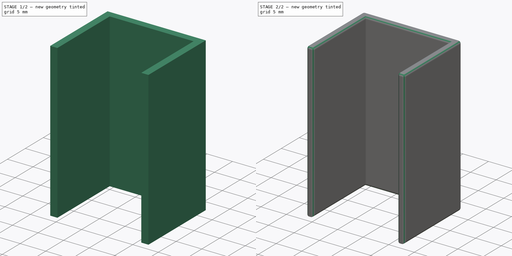
[diagram: build sequence overview — one tinted view per stage of 2, left to right]
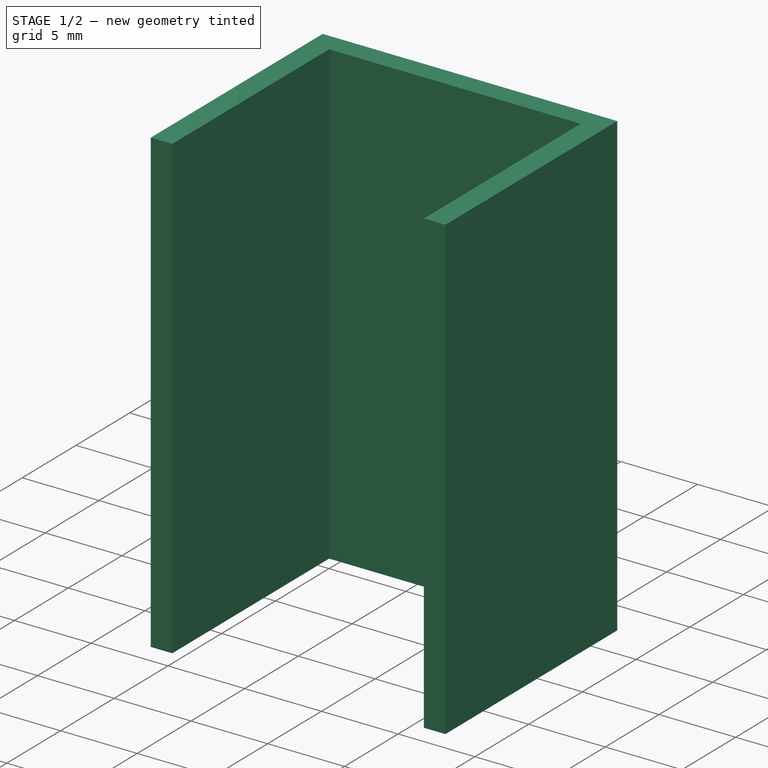
[diagram: stage 1 of 2 — iso view after this stage's code; geometry added in this stage tinted green]
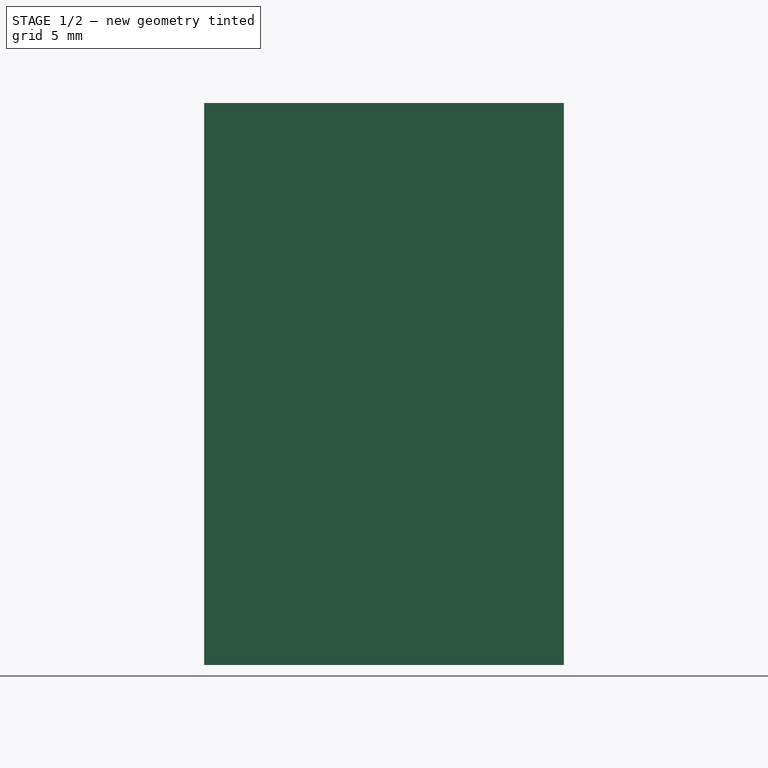
[diagram: stage 1 of 2 — front view after this stage's code; geometry added in this stage tinted green]
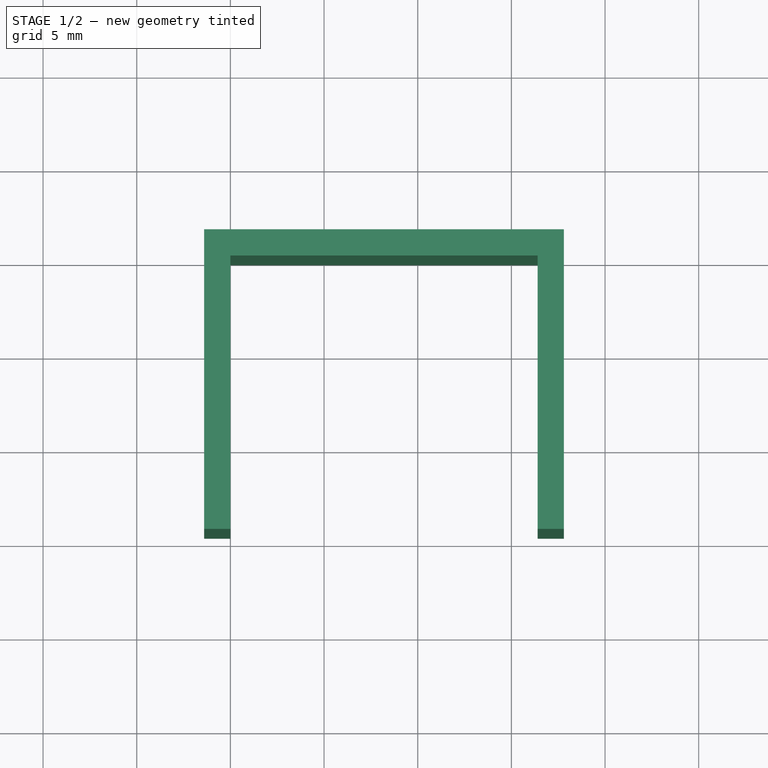
[diagram: stage 1 of 2 — top view after this stage's code; geometry added in this stage tinted green]
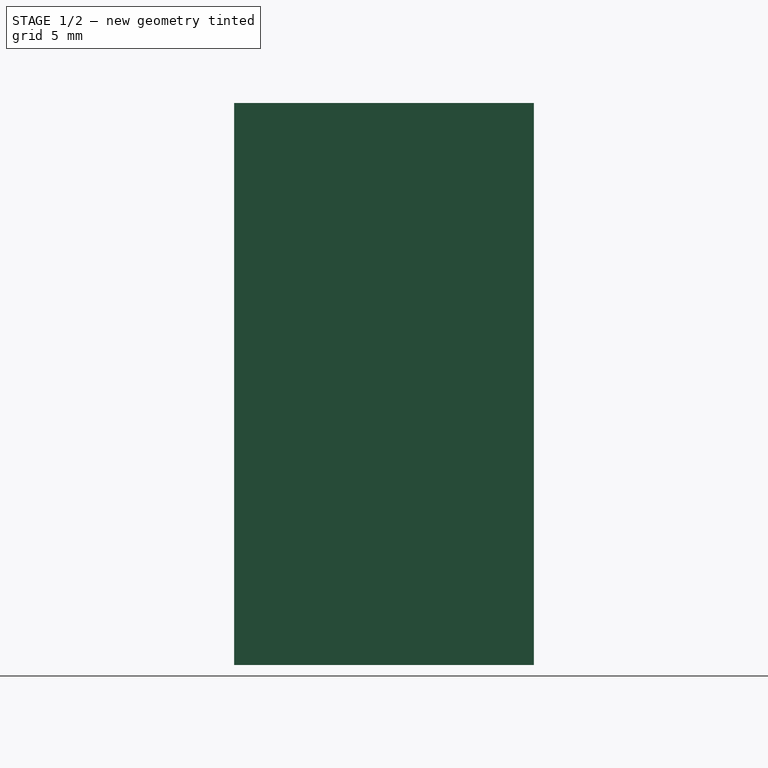
[diagram: stage 1 of 2 — right view after this stage's code; geometry added in this stage tinted green]
FCSTD DOCUMENT  (FreeCAD 0.20R29177 +426 (Git))
Label: 焊接工作台收边夹
License: All rights reserved
LicenseURL: http://en.wikipedia.org/wiki/All_rights_reserved
objects: Sketcher::SketchObject×1, PartDesign::Pad×1, PartDesign::Fillet×1, PartDesign::Body×1
note: 6 computed .brp shape members not serialized (recipe doc carries the construction recipe); baked Part::Feature solids carry a one-line shape summary decoded from their .brp

FEATURE [Sketcher::SketchObject] Sketch
  FullyConstrained = true
  MapMode = 5
  Support = -> [XY_Plane]
  sketch-geometry (8):
    g0: LineSegment StartX=-1.4 StartY=1.4 StartZ=0 EndX=-1.4 EndY=-14.6 EndZ=0
    g1: LineSegment StartX=-1.4 StartY=-14.6 StartZ=0 EndX=0 EndY=-14.6 EndZ=0
    g2: LineSegment StartX=0 StartY=-14.6 StartZ=0 EndX=0 EndY=0 EndZ=0
    g3: LineSegment StartX=0 StartY=0 StartZ=0 EndX=16.4 EndY=0 EndZ=0
    g4: LineSegment StartX=16.4 StartY=0 StartZ=0 EndX=16.4 EndY=-14.6 EndZ=0
    g5: LineSegment StartX=16.4 StartY=-14.6 StartZ=0 EndX=17.8 EndY=-14.6 EndZ=0
    g6: LineSegment StartX=17.8 StartY=-14.6 StartZ=0 EndX=17.8 EndY=1.4 EndZ=0
    g7: LineSegment StartX=17.8 StartY=1.4 StartZ=0 EndX=-1.4 EndY=1.4 EndZ=0
  constraints (23):
    c: Vertical(g0)
    c: Coincident(g0,g1)
    c: Horizontal(g1)
    c: Coincident(g1,g2)
    c: Vertical(g2)
    c: Coincident(g2,g3)
    c: Coincident(g3,g4)
    c: Coincident(g4,g5)
    c: Coincident(g5,g6)
    c: Vertical(g6)
    c: Coincident(g6,g7)
    c: Coincident(g7,g0)
    c: Horizontal(g7)
    c: Horizontal(g3)
    c: Vertical(g4)
    c: Horizontal(g5)
    c: Coincident(g2,g-1)
    c: Distance(g0,g1) = 1.4
    c: Distance(g5,g4) = 1.4
    c: Distance(g0,g3) = 1.4
    c: Distance(g1,g4) = 16.4
    c: Equal(g0,g6)
    c: DistanceY(g0,g0) = 16
FEATURE [PartDesign::Pad] Pad
  Direction = (0,0,1)
  Length = 30
  Length2 = 10
  Profile = -> Sketch
  ReferenceAxis = -> Sketch [N_Axis]
  Type = 0
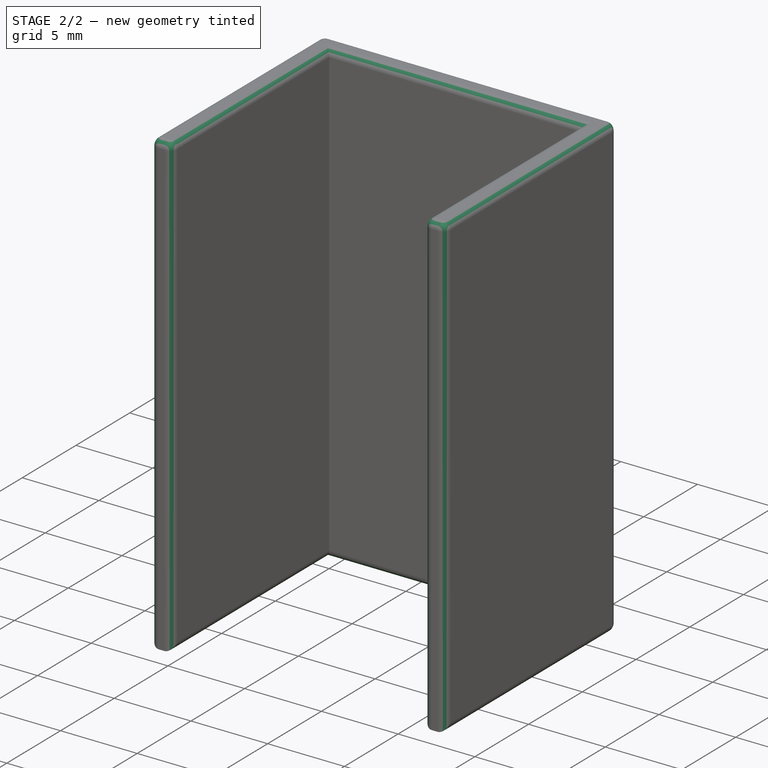
[diagram: stage 2 of 2 — iso view after this stage's code; geometry added in this stage tinted green]
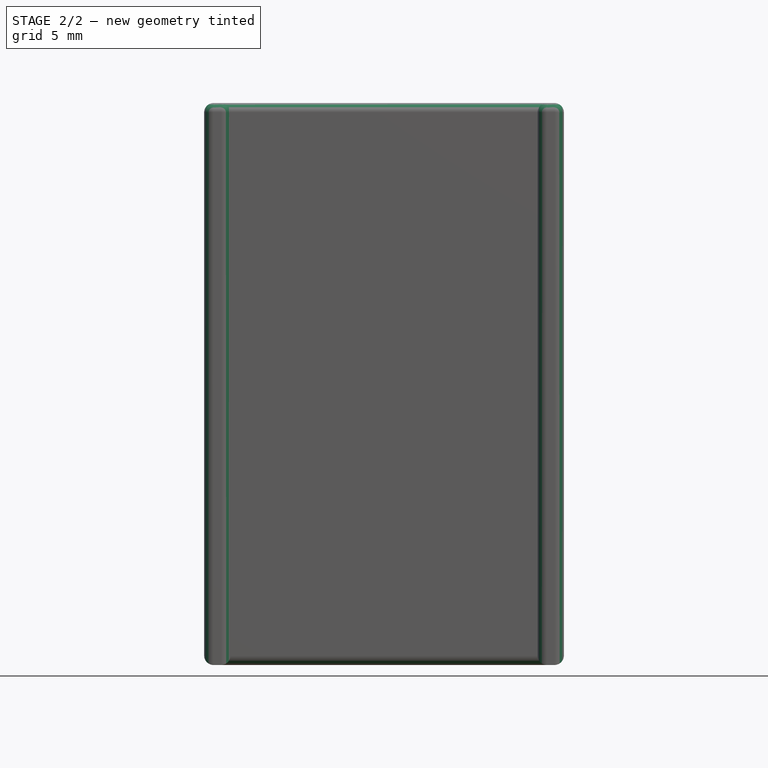
[diagram: stage 2 of 2 — front view after this stage's code; geometry added in this stage tinted green]
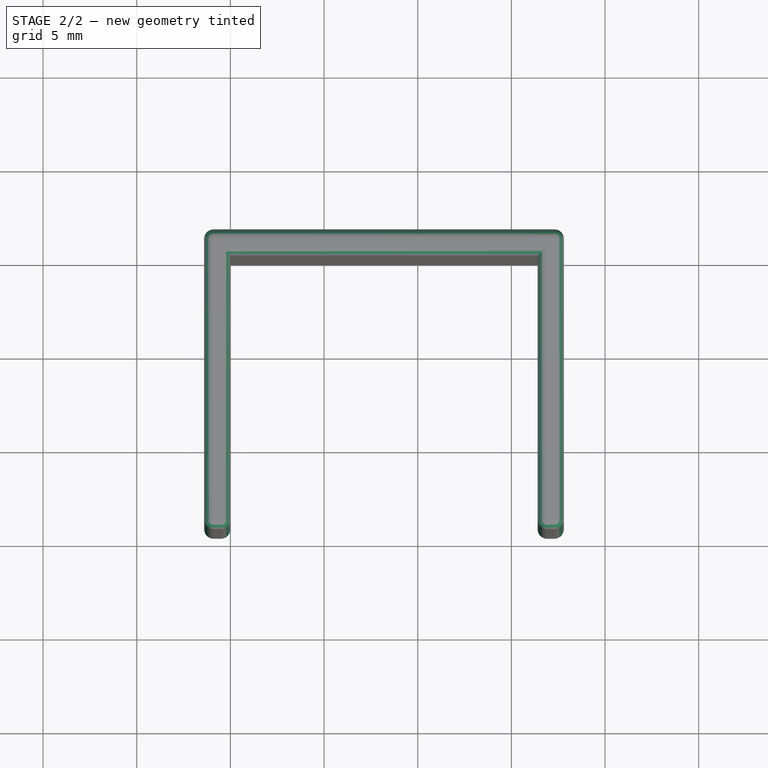
[diagram: stage 2 of 2 — top view after this stage's code; geometry added in this stage tinted green]
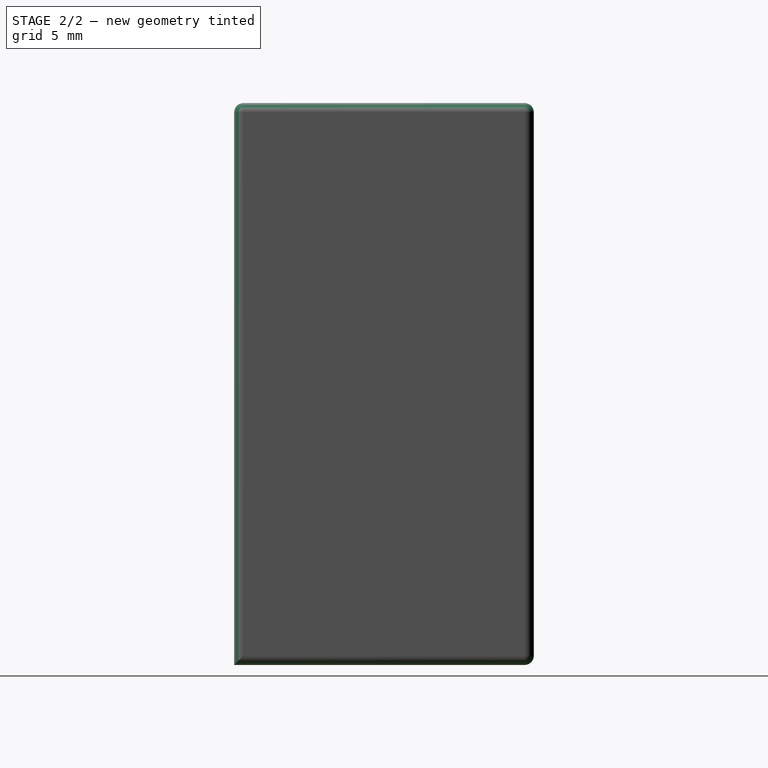
[diagram: stage 2 of 2 — right view after this stage's code; geometry added in this stage tinted green]
FEATURE [PartDesign::Fillet] Fillet
  Base = -> Pad [Edge22,Edge19,Edge16,Edge13,Edge24,Edge4,Edge10,Edge1,Edge20,Edge17,Edge14,Edge5,Edge2,Edge7,Edge21,Edge15,Edge9,Edge3,Edge23,Edge12]
  BaseFeature = -> Pad
  Radius = 0.5
  SupportTransform = false
  UseAllEdges = false
FEATURE [PartDesign::Body] Body
  Group = -> [Sketch,Pad,Fillet]
  Origin = -> Origin
  Tip = -> Fillet
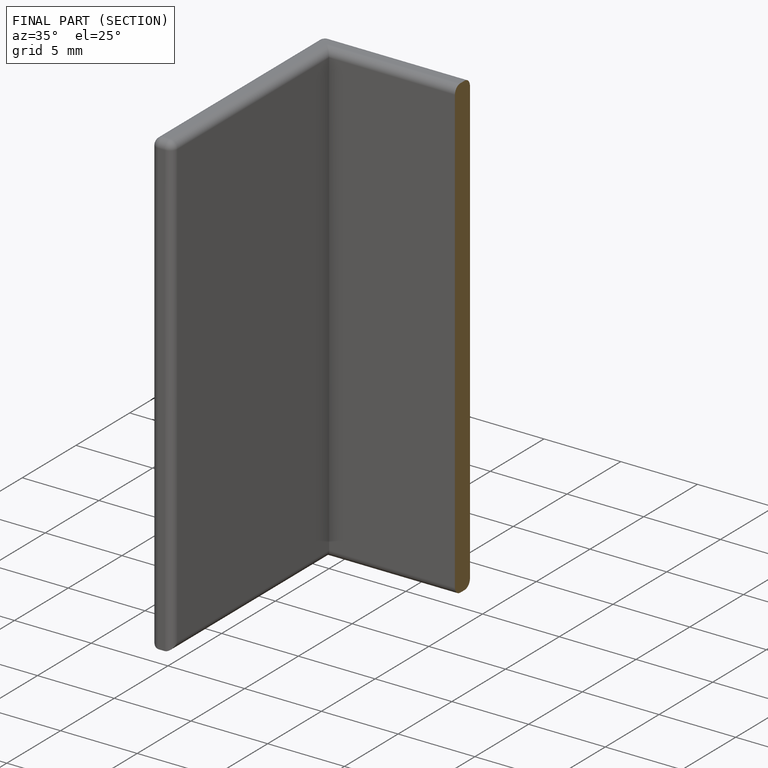
[diagram: finished part — half-section view (interior)]
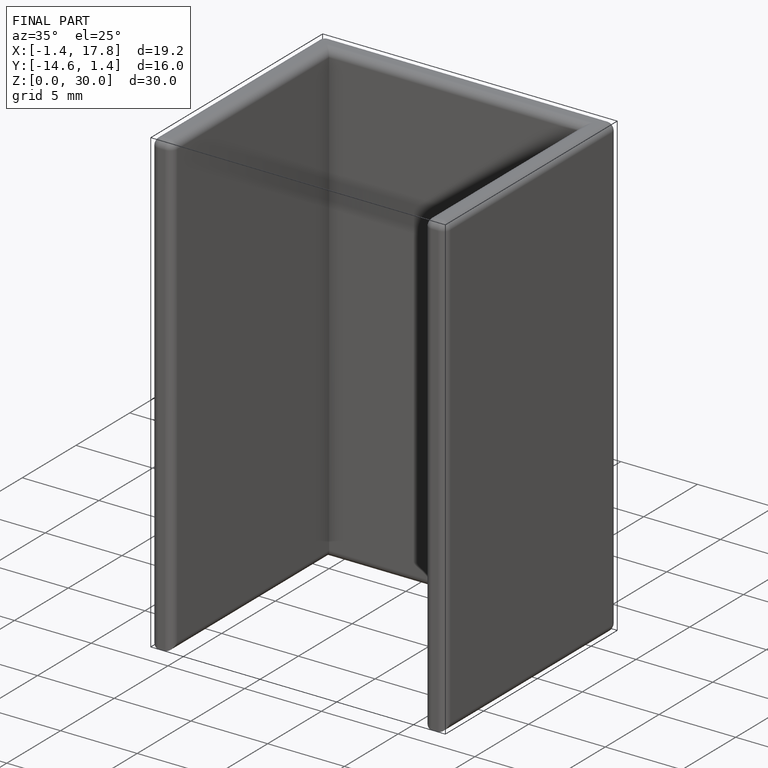
[diagram: finished part — iso view with bounding-box wireframe]
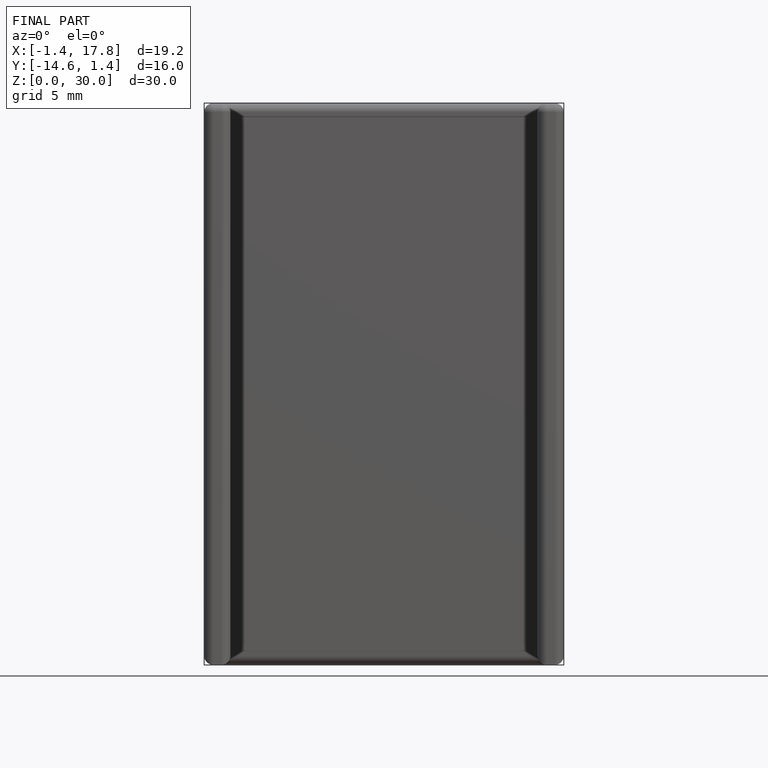
[diagram: finished part — front view with bounding-box wireframe]
